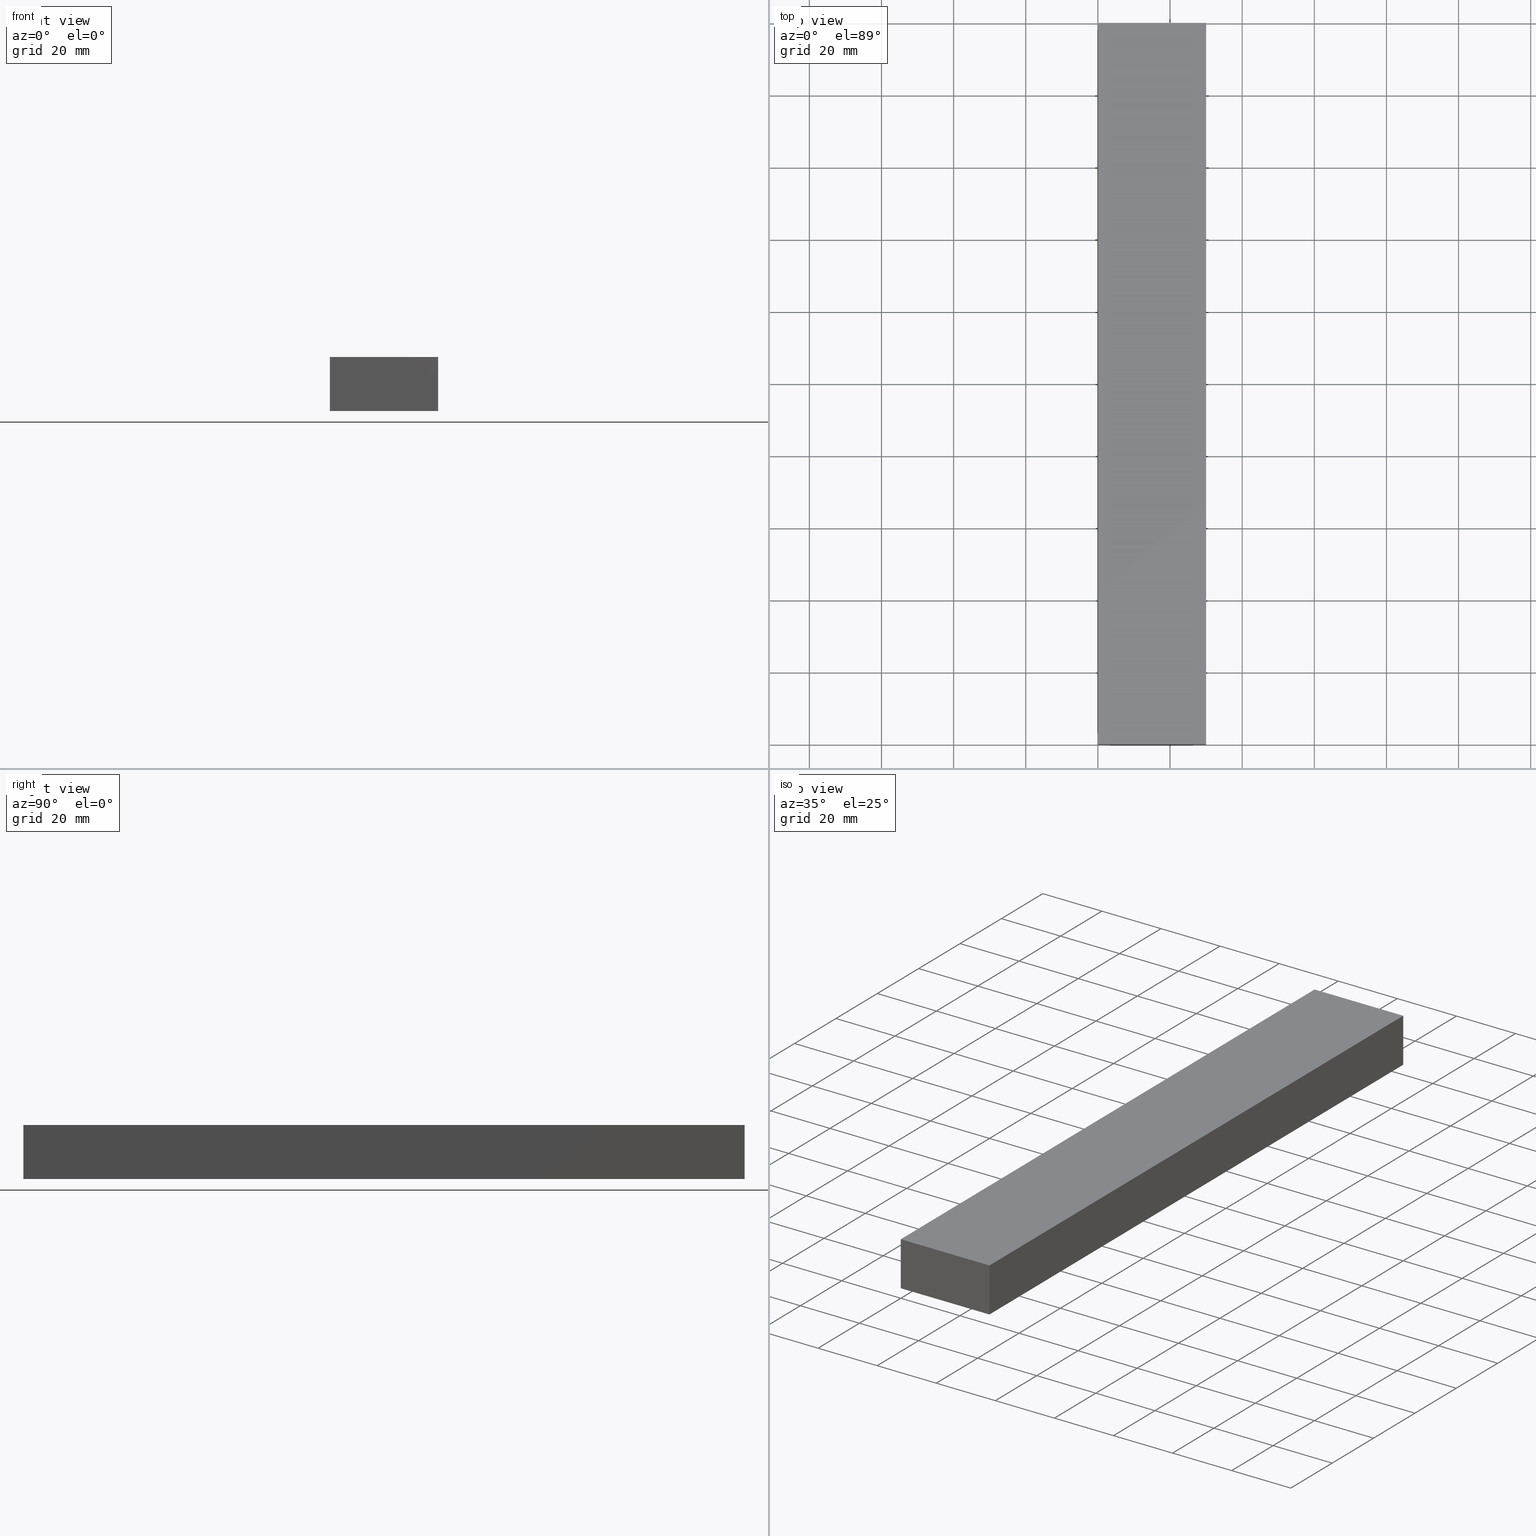
[diagram: canonical four-view strip — front | top / right | iso, engineering-drawing reading convention]
A machine part, canonical four-view strip (front | top / right | iso — engineering-drawing reading convention). The complete STEP part file that produces these views, byte-faithful:
ISO-10303-21;
HEADER;
FILE_DESCRIPTION (( 'STEP AP214' ),
    '1' );
FILE_NAME ('TM_340W_15.STEP',
    '2016-05-09T08:07:00',
    ( '' ),
    ( '' ),
    'SwSTEP 2.0',
    'SolidWorks 2015',
    '' );
FILE_SCHEMA (( 'AUTOMOTIVE_DESIGN' ));
ENDSEC;

DATA;
#1 = PRESENTATION_LAYER_ASSIGNMENT (  '', '', ( #78 ) ) ;
#2 = EDGE_CURVE ( 'NONE', #203, #104, #120, .T. ) ;
#3 = COLOUR_RGB ( '',0.7921568627450980000, 0.8196078431372548800, 0.9294117647058823800 ) ;
#4 = SHAPE_REPRESENTATION ( 'TM_340W_15', ( #174, #99 ), #100 ) ;
#5 = UNCERTAINTY_MEASURE_WITH_UNIT (LENGTH_MEASURE( 1.000000000000000100E-005 ), #42, 'distance_accuracy_value', 'NONE');
#6 = DIRECTION ( 'NONE',  ( 0.0000000000000000000, -1.000000000000000000, 0.0000000000000000000 ) ) ;
#7 = VECTOR ( 'NONE', #90, 1000.000000000000000 ) ;
#8 = VECTOR ( 'NONE', #150, 1000.000000000000000 ) ;
#9 =( NAMED_UNIT ( * ) SI_UNIT ( $, .STERADIAN. ) SOLID_ANGLE_UNIT ( ) );
#10 = EDGE_CURVE ( 'NONE', #104, #49, #130, .T. ) ;
#11 = CARTESIAN_POINT ( 'NONE',  ( 0.0000000000000000000, 0.0000000000000000000, 10.00000000000000000 ) ) ;
#12 = DIRECTION ( 'NONE',  ( 0.0000000000000000000, 0.0000000000000000000, 1.000000000000000000 ) ) ;
#13 = PLANE ( 'NONE',  #81 ) ;
#14 = ORIENTED_EDGE ( 'NONE', *, *, #2, .F. ) ;
#15 = CARTESIAN_POINT ( 'NONE',  ( 30.00000000000000000, 0.0000000000000000000, -5.000000000000000000 ) ) ;
#16 = DIRECTION ( 'NONE',  ( 0.0000000000000000000, -1.000000000000000000, 0.0000000000000000000 ) ) ;
#17 = MECHANICAL_DESIGN_GEOMETRIC_PRESENTATION_REPRESENTATION (  '', ( #78 ), #57 ) ;
#18 = ORIENTED_EDGE ( 'NONE', *, *, #142, .F. ) ;
#19 = CLOSED_SHELL ( 'NONE', ( #139, #160, #122, #192, #134, #128 ) ) ;
#20 = ADVANCED_BREP_SHAPE_REPRESENTATION ( '', ( #52, #51 ), #121 ) ;
#21 = PRESENTATION_STYLE_ASSIGNMENT (( #41 ) ) ;
#22 = CONTEXT_DEPENDENT_SHAPE_REPRESENTATION ( #159, #216 ) ;
#23 = VECTOR ( 'NONE', #198, 1000.000000000000000 ) ;
#24 = FILL_AREA_STYLE_COLOUR ( '', #234 ) ;
#25 = APPLICATION_PROTOCOL_DEFINITION ( 'draft international standard', 'automotive_design', 1998, #69 ) ;
#26 = ORIENTED_EDGE ( 'NONE', *, *, #96, .F. ) ;
#27 = CARTESIAN_POINT ( 'NONE',  ( 30.00000000000000000, 0.0000000000000000000, 10.00000000000000000 ) ) ;
#28 = ORIENTED_EDGE ( 'NONE', *, *, #10, .F. ) ;
#29 = UNCERTAINTY_MEASURE_WITH_UNIT (LENGTH_MEASURE( 1.000000000000000100E-005 ), #215, 'distance_accuracy_value', 'NONE');
#30 = PRESENTATION_STYLE_ASSIGNMENT (( #55 ) ) ;
#31 = PLANE ( 'NONE',  #39 ) ;
#32 = CARTESIAN_POINT ( 'NONE',  ( 30.00000000000000000, 0.0000000000000000000, -5.000000000000000000 ) ) ;
#33 = EDGE_LOOP ( 'NONE', ( #18, #114, #82, #210 ) ) ;
#34 = AXIS2_PLACEMENT_3D ( 'NONE', #236, #140, #146 ) ;
#35 = ORIENTED_EDGE ( 'NONE', *, *, #129, .T. ) ;
#36 = PRODUCT ( 'rubber foam', 'rubber foam', '', ( #178 ) ) ;
#37 = ORIENTED_EDGE ( 'NONE', *, *, #142, .T. ) ;
#38 = VECTOR ( 'NONE', #6, 1000.000000000000000 ) ;
#39 = AXIS2_PLACEMENT_3D ( 'NONE', #219, #47, #195 ) ;
#40 = ORIENTED_EDGE ( 'NONE', *, *, #10, .T. ) ;
#41 = SURFACE_STYLE_USAGE ( .BOTH. , #143 ) ;
#42 =( LENGTH_UNIT ( ) NAMED_UNIT ( * ) SI_UNIT ( .MILLI., .METRE. ) );
#43 = VECTOR ( 'NONE', #148, 1000.000000000000000 ) ;
#44 = FACE_OUTER_BOUND ( 'NONE', #97, .T. ) ;
#45 = DIRECTION ( 'NONE',  ( 1.000000000000000000, 0.0000000000000000000, 0.0000000000000000000 ) ) ;
#46 = STYLED_ITEM ( 'NONE', ( #21 ), #52 ) ;
#47 = DIRECTION ( 'NONE',  ( 0.0000000000000000000, 0.0000000000000000000, 1.000000000000000000 ) ) ;
#48 = DIRECTION ( 'NONE',  ( 1.000000000000000000, 0.0000000000000000000, 0.0000000000000000000 ) ) ;
#49 = VERTEX_POINT ( 'NONE', #11 ) ;
#50 =( NAMED_UNIT ( * ) PLANE_ANGLE_UNIT ( ) SI_UNIT ( $, .RADIAN. ) );
#51 = AXIS2_PLACEMENT_3D ( 'NONE', #214, #233, #106 ) ;
#52 = MANIFOLD_SOLID_BREP ( '���߰�1', #19 ) ;
#53 = PRODUCT_DEFINITION_SHAPE ( 'NONE', 'NONE',  #141 ) ;
#54 = PRODUCT_DEFINITION ( 'UNKNOWN', '', #67, #84 ) ;
#55 = SURFACE_STYLE_USAGE ( .BOTH. , #200 ) ;
#56 = LINE ( 'NONE', #162, #63 ) ;
#57 =( GEOMETRIC_REPRESENTATION_CONTEXT ( 3 ) GLOBAL_UNCERTAINTY_ASSIGNED_CONTEXT ( ( #29 ) ) GLOBAL_UNIT_ASSIGNED_CONTEXT ( ( #215, #107, #138 ) ) REPRESENTATION_CONTEXT ( 'NONE', 'WORKASPACE' ) );
#58 =( NAMED_UNIT ( * ) PLANE_ANGLE_UNIT ( ) SI_UNIT ( $, .RADIAN. ) );
#59 = VERTEX_POINT ( 'NONE', #76 ) ;
#60 = EDGE_CURVE ( 'NONE', #83, #203, #62, .T. ) ;
#61 = PRODUCT ( 'TM_340W_15', 'TM_340W_15', '', ( #208 ) ) ;
#62 = LINE ( 'NONE', #165, #7 ) ;
#63 = VECTOR ( 'NONE', #116, 1000.000000000000000 ) ;
#64 = FACE_OUTER_BOUND ( 'NONE', #225, .T. ) ;
#65 = PRODUCT_RELATED_PRODUCT_CATEGORY ( 'part', '', ( #61 ) ) ;
#66 = DIRECTION ( 'NONE',  ( 0.0000000000000000000, 0.0000000000000000000, -1.000000000000000000 ) ) ;
#67 = PRODUCT_DEFINITION_FORMATION_WITH_SPECIFIED_SOURCE ( 'ANY', '', #61, .NOT_KNOWN. ) ;
#68 = FACE_OUTER_BOUND ( 'NONE', #188, .T. ) ;
#69 = APPLICATION_CONTEXT ( 'automotive_design' ) ;
#70 =( LENGTH_UNIT ( ) NAMED_UNIT ( * ) SI_UNIT ( .MILLI., .METRE. ) );
#71 = CARTESIAN_POINT ( 'NONE',  ( 0.0000000000000000000, 200.0000000000000000, 10.00000000000000000 ) ) ;
#72 = ORIENTED_EDGE ( 'NONE', *, *, #2, .T. ) ;
#73 = PRODUCT_RELATED_PRODUCT_CATEGORY ( 'part', '', ( #36 ) ) ;
#74 = CARTESIAN_POINT ( 'NONE',  ( 30.00000000000000000, 200.0000000000000000, -5.000000000000000000 ) ) ;
#75 = FILL_AREA_STYLE ('',( #145 ) ) ;
#76 = CARTESIAN_POINT ( 'NONE',  ( 0.0000000000000000000, 0.0000000000000000000, -5.000000000000000000 ) ) ;
#77 = ORIENTED_EDGE ( 'NONE', *, *, #129, .F. ) ;
#78 = STYLED_ITEM ( 'NONE', ( #30 ), #20 ) ;
#79 = VECTOR ( 'NONE', #222, 1000.000000000000000 ) ;
#80 = FACE_OUTER_BOUND ( 'NONE', #33, .T. ) ;
#81 = AXIS2_PLACEMENT_3D ( 'NONE', #167, #85, #119 ) ;
#82 = ORIENTED_EDGE ( 'NONE', *, *, #221, .T. ) ;
#83 = VERTEX_POINT ( 'NONE', #180 ) ;
#84 = PRODUCT_DEFINITION_CONTEXT ( 'detailed design', #102, 'design' ) ;
#85 = DIRECTION ( 'NONE',  ( 0.0000000000000000000, 1.000000000000000000, 0.0000000000000000000 ) ) ;
#86 = APPLICATION_PROTOCOL_DEFINITION ( 'draft international standard', 'automotive_design', 1998, #135 ) ;
#87 = VERTEX_POINT ( 'NONE', #136 ) ;
#88 = DIRECTION ( 'NONE',  ( 0.0000000000000000000, 0.0000000000000000000, 1.000000000000000000 ) ) ;
#89 = CARTESIAN_POINT ( 'NONE',  ( 0.0000000000000000000, 200.0000000000000000, 10.00000000000000000 ) ) ;
#90 = DIRECTION ( 'NONE',  ( 0.0000000000000000000, 0.0000000000000000000, 1.000000000000000000 ) ) ;
#91 =( NAMED_UNIT ( * ) SI_UNIT ( $, .STERADIAN. ) SOLID_ANGLE_UNIT ( ) );
#92 = CARTESIAN_POINT ( 'NONE',  ( 0.0000000000000000000, 0.0000000000000000000, 0.0000000000000000000 ) ) ;
#93 = CARTESIAN_POINT ( 'NONE',  ( 30.00000000000000000, 200.0000000000000000, 10.00000000000000000 ) ) ;
#94 = VECTOR ( 'NONE', #177, 1000.000000000000000 ) ;
#95 = DIRECTION ( 'NONE',  ( 0.0000000000000000000, 0.0000000000000000000, 1.000000000000000000 ) ) ;
#96 = EDGE_CURVE ( 'NONE', #227, #203, #151, .T. ) ;
#97 = EDGE_LOOP ( 'NONE', ( #173, #155, #117, #126 ) ) ;
#98 = EDGE_CURVE ( 'NONE', #87, #59, #153, .T. ) ;
#99 = AXIS2_PLACEMENT_3D ( 'NONE', #231, #88, #209 ) ;
#100 =( GEOMETRIC_REPRESENTATION_CONTEXT ( 3 ) GLOBAL_UNCERTAINTY_ASSIGNED_CONTEXT ( ( #206 ) ) GLOBAL_UNIT_ASSIGNED_CONTEXT ( ( #70, #196, #9 ) ) REPRESENTATION_CONTEXT ( 'NONE', 'WORKASPACE' ) );
#101 = DIRECTION ( 'NONE',  ( 1.000000000000000000, 0.0000000000000000000, 0.0000000000000000000 ) ) ;
#102 = APPLICATION_CONTEXT ( 'automotive_design' ) ;
#103 = DIRECTION ( 'NONE',  ( 1.000000000000000000, 0.0000000000000000000, 0.0000000000000000000 ) ) ;
#104 = VERTEX_POINT ( 'NONE', #71 ) ;
#105 = SURFACE_STYLE_FILL_AREA ( #75 ) ;
#106 = DIRECTION ( 'NONE',  ( 1.000000000000000000, 0.0000000000000000000, 0.0000000000000000000 ) ) ;
#107 =( NAMED_UNIT ( * ) PLANE_ANGLE_UNIT ( ) SI_UNIT ( $, .RADIAN. ) );
#108 = DIRECTION ( 'NONE',  ( 0.0000000000000000000, 0.0000000000000000000, -1.000000000000000000 ) ) ;
#109 = VECTOR ( 'NONE', #238, 1000.000000000000000 ) ;
#110 = EDGE_CURVE ( 'NONE', #59, #49, #172, .T. ) ;
#111 = AXIS2_PLACEMENT_3D ( 'NONE', #118, #12, #103 ) ;
#112 = PRODUCT_DEFINITION_CONTEXT ( 'detailed design', #69, 'design' ) ;
#113 = AXIS2_PLACEMENT_3D ( 'NONE', #15, #48, #66 ) ;
#114 = ORIENTED_EDGE ( 'NONE', *, *, #110, .F. ) ;
#115 = APPLICATION_PROTOCOL_DEFINITION ( 'draft international standard', 'automotive_design', 1998, #230 ) ;
#116 = DIRECTION ( 'NONE',  ( 0.0000000000000000000, 0.0000000000000000000, 1.000000000000000000 ) ) ;
#117 = ORIENTED_EDGE ( 'NONE', *, *, #232, .F. ) ;
#118 = CARTESIAN_POINT ( 'NONE',  ( 0.0000000000000000000, 0.0000000000000000000, 0.0000000000000000000 ) ) ;
#119 = DIRECTION ( 'NONE',  ( 0.0000000000000000000, 0.0000000000000000000, 1.000000000000000000 ) ) ;
#120 = LINE ( 'NONE', #125, #224 ) ;
#121 =( GEOMETRIC_REPRESENTATION_CONTEXT ( 3 ) GLOBAL_UNCERTAINTY_ASSIGNED_CONTEXT ( ( #182 ) ) GLOBAL_UNIT_ASSIGNED_CONTEXT ( ( #181, #50, #166 ) ) REPRESENTATION_CONTEXT ( 'NONE', 'WORKASPACE' ) );
#122 = ADVANCED_FACE ( 'NONE', ( #190 ), #133, .T. ) ;
#123 = ORIENTED_EDGE ( 'NONE', *, *, #98, .T. ) ;
#124 = DIRECTION ( 'NONE',  ( 0.0000000000000000000, 0.0000000000000000000, 1.000000000000000000 ) ) ;
#125 = CARTESIAN_POINT ( 'NONE',  ( 30.00000000000000000, 200.0000000000000000, 10.00000000000000000 ) ) ;
#126 = ORIENTED_EDGE ( 'NONE', *, *, #221, .F. ) ;
#127 = ORIENTED_EDGE ( 'NONE', *, *, #60, .F. ) ;
#128 = ADVANCED_FACE ( 'NONE', ( #223 ), #31, .T. ) ;
#129 = EDGE_CURVE ( 'NONE', #87, #104, #158, .T. ) ;
#130 = LINE ( 'NONE', #89, #79 ) ;
#131 = CARTESIAN_POINT ( 'NONE',  ( 0.0000000000000000000, 0.0000000000000000000, -5.000000000000000000 ) ) ;
#132 = AXIS2_PLACEMENT_3D ( 'NONE', #147, #16, #108 ) ;
#133 = PLANE ( 'NONE',  #113 ) ;
#134 = ADVANCED_FACE ( 'NONE', ( #44 ), #211, .F. ) ;
#135 = APPLICATION_CONTEXT ( 'automotive_design' ) ;
#136 = CARTESIAN_POINT ( 'NONE',  ( 0.0000000000000000000, 200.0000000000000000, -5.000000000000000000 ) ) ;
#137 = LINE ( 'NONE', #176, #94 ) ;
#138 =( NAMED_UNIT ( * ) SI_UNIT ( $, .STERADIAN. ) SOLID_ANGLE_UNIT ( ) );
#139 = ADVANCED_FACE ( 'NONE', ( #64 ), #193, .T. ) ;
#140 = DIRECTION ( 'NONE',  ( -1.000000000000000000, 0.0000000000000000000, 0.0000000000000000000 ) ) ;
#141 = PRODUCT_DEFINITION ( 'UNKNOWN', '', #186, #112 ) ;
#142 = EDGE_CURVE ( 'NONE', #49, #227, #137, .T. ) ;
#143 = SURFACE_SIDE_STYLE ('',( #191 ) ) ;
#144 = ORIENTED_EDGE ( 'NONE', *, *, #110, .T. ) ;
#145 = FILL_AREA_STYLE_COLOUR ( '', #3 ) ;
#146 = DIRECTION ( 'NONE',  ( 0.0000000000000000000, 0.0000000000000000000, 1.000000000000000000 ) ) ;
#147 = CARTESIAN_POINT ( 'NONE',  ( 0.0000000000000000000, 0.0000000000000000000, -5.000000000000000000 ) ) ;
#148 = DIRECTION ( 'NONE',  ( 1.000000000000000000, 0.0000000000000000000, 0.0000000000000000000 ) ) ;
#149 = EDGE_CURVE ( 'NONE', #183, #227, #56, .T. ) ;
#150 = DIRECTION ( 'NONE',  ( 0.0000000000000000000, 0.0000000000000000000, 1.000000000000000000 ) ) ;
#151 = LINE ( 'NONE', #157, #109 ) ;
#152 = LINE ( 'NONE', #74, #201 ) ;
#153 = LINE ( 'NONE', #235, #38 ) ;
#154 =( GEOMETRIC_REPRESENTATION_CONTEXT ( 3 ) GLOBAL_UNCERTAINTY_ASSIGNED_CONTEXT ( ( #5 ) ) GLOBAL_UNIT_ASSIGNED_CONTEXT ( ( #42, #58, #91 ) ) REPRESENTATION_CONTEXT ( 'NONE', 'WORKASPACE' ) );
#155 = ORIENTED_EDGE ( 'NONE', *, *, #197, .F. ) ;
#156 = SHAPE_DEFINITION_REPRESENTATION ( #53, #170 ) ;
#157 = CARTESIAN_POINT ( 'NONE',  ( 30.00000000000000000, 0.0000000000000000000, 10.00000000000000000 ) ) ;
#158 = LINE ( 'NONE', #213, #8 ) ;
#159 =( REPRESENTATION_RELATIONSHIP ('NONE','NONE', #4, #170 ) REPRESENTATION_RELATIONSHIP_WITH_TRANSFORMATION ( #217 )SHAPE_REPRESENTATION_RELATIONSHIP( ) );
#160 = ADVANCED_FACE ( 'NONE', ( #68 ), #13, .T. ) ;
#161 = DIRECTION ( 'NONE',  ( 0.0000000000000000000, 0.0000000000000000000, 1.000000000000000000 ) ) ;
#162 = CARTESIAN_POINT ( 'NONE',  ( 30.00000000000000000, 0.0000000000000000000, -5.000000000000000000 ) ) ;
#163 = ORIENTED_EDGE ( 'NONE', *, *, #232, .T. ) ;
#164 = PLANE ( 'NONE',  #132 ) ;
#165 = CARTESIAN_POINT ( 'NONE',  ( 30.00000000000000000, 200.0000000000000000, -5.000000000000000000 ) ) ;
#166 =( NAMED_UNIT ( * ) SI_UNIT ( $, .STERADIAN. ) SOLID_ANGLE_UNIT ( ) );
#167 = CARTESIAN_POINT ( 'NONE',  ( 30.00000000000000000, 200.0000000000000000, -5.000000000000000000 ) ) ;
#168 = FILL_AREA_STYLE ('',( #24 ) ) ;
#169 = LINE ( 'NONE', #199, #23 ) ;
#170 = SHAPE_REPRESENTATION ( 'rubber foam', ( #51 ), #121 ) ;
#171 = ORIENTED_EDGE ( 'NONE', *, *, #197, .T. ) ;
#172 = LINE ( 'NONE', #131, #202 ) ;
#173 = ORIENTED_EDGE ( 'NONE', *, *, #98, .F. ) ;
#174 = AXIS2_PLACEMENT_3D ( 'NONE', #92, #161, #45 ) ;
#175 = ORIENTED_EDGE ( 'NONE', *, *, #149, .F. ) ;
#176 = CARTESIAN_POINT ( 'NONE',  ( 0.0000000000000000000, 0.0000000000000000000, 10.00000000000000000 ) ) ;
#177 = DIRECTION ( 'NONE',  ( 1.000000000000000000, 0.0000000000000000000, 0.0000000000000000000 ) ) ;
#178 = PRODUCT_CONTEXT ( 'NONE', #135, 'mechanical' ) ;
#179 = EDGE_LOOP ( 'NONE', ( #26, #175, #163, #220 ) ) ;
#180 = CARTESIAN_POINT ( 'NONE',  ( 30.00000000000000000, 200.0000000000000000, -5.000000000000000000 ) ) ;
#181 =( LENGTH_UNIT ( ) NAMED_UNIT ( * ) SI_UNIT ( .MILLI., .METRE. ) );
#182 = UNCERTAINTY_MEASURE_WITH_UNIT (LENGTH_MEASURE( 1.000000000000000100E-005 ), #181, 'distance_accuracy_value', 'NONE');
#183 = VERTEX_POINT ( 'NONE', #32 ) ;
#184 = DIRECTION ( 'NONE',  ( -1.000000000000000000, 0.0000000000000000000, 0.0000000000000000000 ) ) ;
#185 = EDGE_LOOP ( 'NONE', ( #40, #37, #229, #72 ) ) ;
#186 = PRODUCT_DEFINITION_FORMATION_WITH_SPECIFIED_SOURCE ( 'ANY', '', #36, .NOT_KNOWN. ) ;
#187 = CARTESIAN_POINT ( 'NONE',  ( 0.0000000000000000000, 0.0000000000000000000, -5.000000000000000000 ) ) ;
#188 = EDGE_LOOP ( 'NONE', ( #14, #127, #171, #35 ) ) ;
#189 = PRODUCT_DEFINITION_SHAPE ( 'NONE', 'NONE',  #54 ) ;
#190 = FACE_OUTER_BOUND ( 'NONE', #179, .T. ) ;
#191 = SURFACE_STYLE_FILL_AREA ( #168 ) ;
#192 = ADVANCED_FACE ( 'NONE', ( #80 ), #164, .T. ) ;
#193 = PLANE ( 'NONE',  #34 ) ;
#194 = APPLICATION_PROTOCOL_DEFINITION ( 'draft international standard', 'automotive_design', 1998, #102 ) ;
#195 = DIRECTION ( 'NONE',  ( 1.000000000000000000, 0.0000000000000000000, 0.0000000000000000000 ) ) ;
#196 =( NAMED_UNIT ( * ) PLANE_ANGLE_UNIT ( ) SI_UNIT ( $, .RADIAN. ) );
#197 = EDGE_CURVE ( 'NONE', #83, #87, #152, .T. ) ;
#198 = DIRECTION ( 'NONE',  ( 0.0000000000000000000, 1.000000000000000000, 0.0000000000000000000 ) ) ;
#199 = CARTESIAN_POINT ( 'NONE',  ( 30.00000000000000000, 0.0000000000000000000, -5.000000000000000000 ) ) ;
#200 = SURFACE_SIDE_STYLE ('',( #105 ) ) ;
#201 = VECTOR ( 'NONE', #184, 1000.000000000000000 ) ;
#202 = VECTOR ( 'NONE', #124, 1000.000000000000000 ) ;
#203 = VERTEX_POINT ( 'NONE', #93 ) ;
#204 = PRESENTATION_LAYER_ASSIGNMENT (  '', '', ( #46 ) ) ;
#205 = AXIS2_PLACEMENT_3D ( 'NONE', #187, #95, #101 ) ;
#206 = UNCERTAINTY_MEASURE_WITH_UNIT (LENGTH_MEASURE( 1.000000000000000100E-005 ), #70, 'distance_accuracy_value', 'NONE');
#207 = LINE ( 'NONE', #218, #43 ) ;
#208 = PRODUCT_CONTEXT ( 'NONE', #230, 'mechanical' ) ;
#209 = DIRECTION ( 'NONE',  ( 1.000000000000000000, 0.0000000000000000000, 0.0000000000000000000 ) ) ;
#210 = ORIENTED_EDGE ( 'NONE', *, *, #149, .T. ) ;
#211 = PLANE ( 'NONE',  #205 ) ;
#212 = SHAPE_DEFINITION_REPRESENTATION ( #189, #4 ) ;
#213 = CARTESIAN_POINT ( 'NONE',  ( 0.0000000000000000000, 200.0000000000000000, -5.000000000000000000 ) ) ;
#214 = CARTESIAN_POINT ( 'NONE',  ( 0.0000000000000000000, 0.0000000000000000000, 0.0000000000000000000 ) ) ;
#215 =( LENGTH_UNIT ( ) NAMED_UNIT ( * ) SI_UNIT ( .MILLI., .METRE. ) );
#216 = PRODUCT_DEFINITION_SHAPE ( 'NONE', 'NONE',  #239 ) ;
#217 = ITEM_DEFINED_TRANSFORMATION ( 'NONE', 'NONE', #99,  #51 ) ;
#218 = CARTESIAN_POINT ( 'NONE',  ( 0.0000000000000000000, 0.0000000000000000000, -5.000000000000000000 ) ) ;
#219 = CARTESIAN_POINT ( 'NONE',  ( 0.0000000000000000000, 0.0000000000000000000, 10.00000000000000000 ) ) ;
#220 = ORIENTED_EDGE ( 'NONE', *, *, #60, .T. ) ;
#221 = EDGE_CURVE ( 'NONE', #59, #183, #207, .T. ) ;
#222 = DIRECTION ( 'NONE',  ( 0.0000000000000000000, -1.000000000000000000, 0.0000000000000000000 ) ) ;
#223 = FACE_OUTER_BOUND ( 'NONE', #185, .T. ) ;
#224 = VECTOR ( 'NONE', #228, 1000.000000000000000 ) ;
#225 = EDGE_LOOP ( 'NONE', ( #28, #77, #123, #144 ) ) ;
#226 = MECHANICAL_DESIGN_GEOMETRIC_PRESENTATION_REPRESENTATION (  '', ( #46 ), #154 ) ;
#227 = VERTEX_POINT ( 'NONE', #27 ) ;
#228 = DIRECTION ( 'NONE',  ( -1.000000000000000000, 0.0000000000000000000, 0.0000000000000000000 ) ) ;
#229 = ORIENTED_EDGE ( 'NONE', *, *, #96, .T. ) ;
#230 = APPLICATION_CONTEXT ( 'automotive_design' ) ;
#231 = CARTESIAN_POINT ( 'NONE',  ( 0.0000000000000000000, 0.0000000000000000000, 0.0000000000000000000 ) ) ;
#232 = EDGE_CURVE ( 'NONE', #183, #83, #169, .T. ) ;
#233 = DIRECTION ( 'NONE',  ( 0.0000000000000000000, 0.0000000000000000000, 1.000000000000000000 ) ) ;
#234 = COLOUR_RGB ( '',0.7921568627450980000, 0.8196078431372548800, 0.9294117647058823800 ) ;
#235 = CARTESIAN_POINT ( 'NONE',  ( 0.0000000000000000000, 200.0000000000000000, -5.000000000000000000 ) ) ;
#236 = CARTESIAN_POINT ( 'NONE',  ( 0.0000000000000000000, 200.0000000000000000, -5.000000000000000000 ) ) ;
#237 = SHAPE_REPRESENTATION_RELATIONSHIP ( 'NONE' , 'NONE' ,  #170, #20 ) ;
#238 = DIRECTION ( 'NONE',  ( 0.0000000000000000000, 1.000000000000000000, 0.0000000000000000000 ) ) ;
#239 = NEXT_ASSEMBLY_USAGE_OCCURRENCE ( 'NAUO1', ' ', ' ', #54, #141, $ ) ;
ENDSEC;
END-ISO-10303-21;
